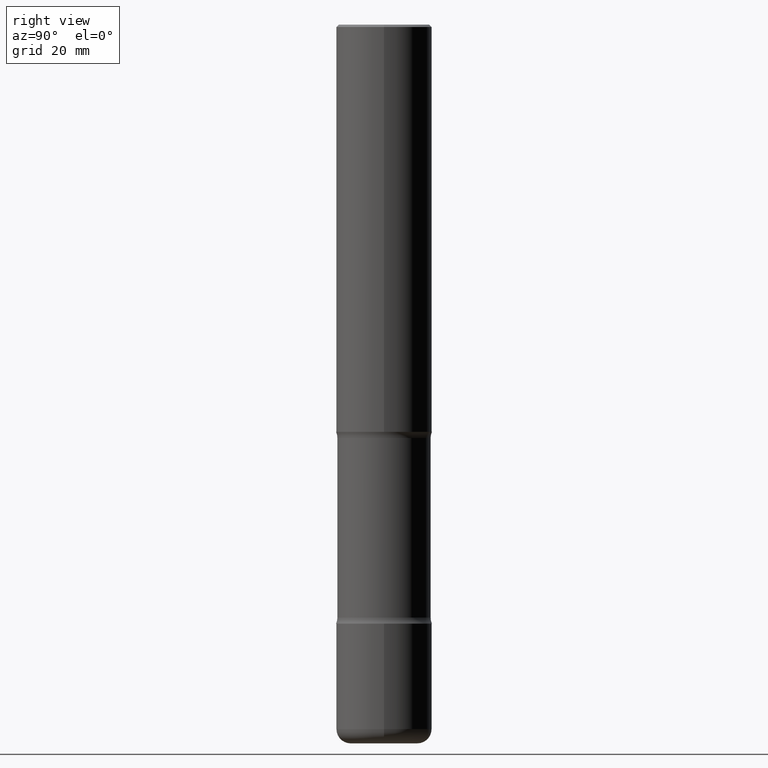
[diagram: clean part render]
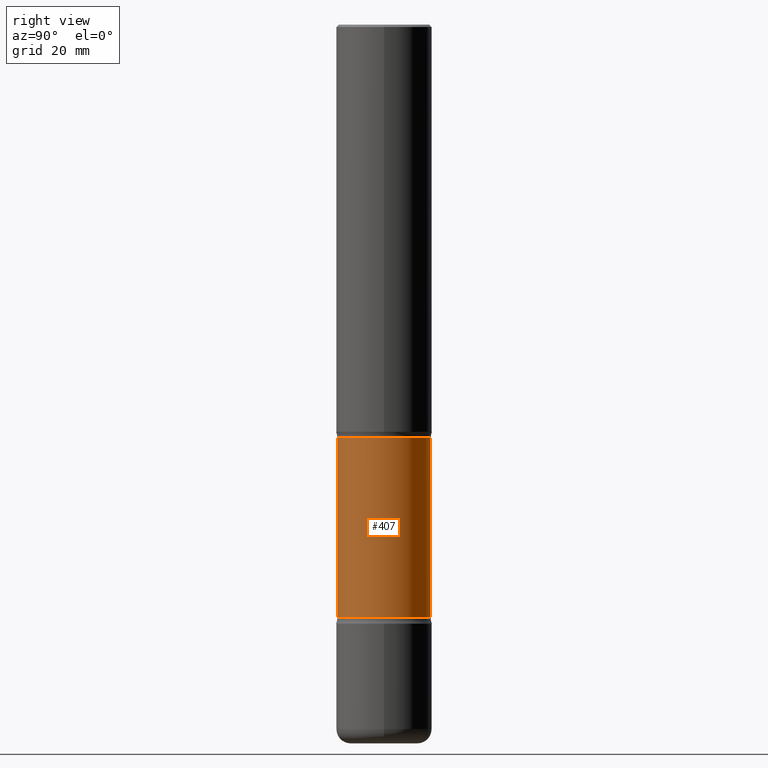
[diagram: same view with one face highlighted and labeled with its STEP entity id]
A machine part, right view. The second image highlights one B-rep face of the part: STEP entity #407.
In plain terms, the highlighted cylindrical surface (partial cylindrical patch) has radius 9.732 mm, axis along (0, -0, -1).
Its self-contained STEP definition (entity closure, byte-faithful):
#5 = EDGE_CURVE ( 'NONE', #536, #327, #84, .T. ) ;
#44 = CYLINDRICAL_SURFACE ( 'NONE', #326, 0.3831500000000001016 ) ;
#78 = CARTESIAN_POINT ( 'NONE',  ( -2.664788934784327650E-15, -0.3831500000000122585, -3.396661292263528864 ) ) ;
#84 = LINE ( 'NONE', #203, #85 ) ;
#85 = VECTOR ( 'NONE', #115, 39.37007874015748143 ) ;
#91 = CARTESIAN_POINT ( 'NONE',  ( 1.190673467460695127E-28, -1.701394328149833235E-14, -4.870938707736469198 ) ) ;
#93 = EDGE_CURVE ( 'NONE', #410, #395, #443, .T. ) ;
#99 = VECTOR ( 'NONE', #435, 39.37007874015748143 ) ;
#115 = DIRECTION ( 'NONE',  ( 2.544829403126025960E-29, -3.349191308769819201E-15, -1.000000000000000000 ) ) ;
#120 = CARTESIAN_POINT ( 'NONE',  ( 8.154950159346770172E-29, -1.207630617488073123E-14, -3.396661292263530196 ) ) ;
#161 = CARTESIAN_POINT ( 'NONE',  ( 1.453951667049523885E-28, -2.047888696993701883E-14, -5.905499999999999972 ) ) ;
#173 = DIRECTION ( 'NONE',  ( 6.982962677686266711E-15, 1.000000000000000000, -2.851987987643756086E-15 ) ) ;
#182 = EDGE_CURVE ( 'NONE', #395, #327, #437, .T. ) ;
#186 = ORIENTED_EDGE ( 'NONE', *, *, #93, .F. ) ;
#195 = AXIS2_PLACEMENT_3D ( 'NONE', #120, #292, #204 ) ;
#199 = ORIENTED_EDGE ( 'NONE', *, *, #530, .T. ) ;
#203 = CARTESIAN_POINT ( 'NONE',  ( -2.628599807846017064E-15, -0.3831500000000205852, -5.905499999999998195 ) ) ;
#204 = DIRECTION ( 'NONE',  ( 6.982962677686265922E-15, 1.000000000000000000, -2.851987987643754903E-15 ) ) ;
#292 = DIRECTION ( 'NONE',  ( 2.544829403126025960E-29, -3.349191308769819201E-15, -1.000000000000000000 ) ) ;
#303 = CARTESIAN_POINT ( 'NONE',  ( 2.675522149955575835E-15, 0.3831499999999881112, -3.396661292263531085 ) ) ;
#313 = ORIENTED_EDGE ( 'NONE', *, *, #5, .T. ) ;
#326 = AXIS2_PLACEMENT_3D ( 'NONE', #161, #418, #426 ) ;
#327 = VERTEX_POINT ( 'NONE', #469 ) ;
#340 = FACE_OUTER_BOUND ( 'NONE', #507, .T. ) ;
#349 = AXIS2_PLACEMENT_3D ( 'NONE', #91, #430, #173 ) ;
#354 = CARTESIAN_POINT ( 'NONE',  ( 2.675522149955639339E-15, 0.3831499999999796180, -5.905500000000000860 ) ) ;
#376 = CARTESIAN_POINT ( 'NONE',  ( 2.675522149955612123E-15, 0.3831499999999830597, -4.870938707736470974 ) ) ;
#381 = CIRCLE ( 'NONE', #195, 0.3831500000000002126 ) ;
#395 = VERTEX_POINT ( 'NONE', #376 ) ;
#407 = ADVANCED_FACE ( 'NONE', ( #340 ), #44, .T. ) ;
#410 = VERTEX_POINT ( 'NONE', #303 ) ;
#418 = DIRECTION ( 'NONE',  ( 2.544829403126025960E-29, -3.349191308769819201E-15, -1.000000000000000000 ) ) ;
#426 = DIRECTION ( 'NONE',  ( 6.982962677686266711E-15, 1.000000000000000000, -2.851987987643755691E-15 ) ) ;
#430 = DIRECTION ( 'NONE',  ( 2.544829403126025960E-29, -3.349191308769819201E-15, -1.000000000000000000 ) ) ;
#435 = DIRECTION ( 'NONE',  ( 2.544829403126025960E-29, -3.349191308769819201E-15, -1.000000000000000000 ) ) ;
#437 = CIRCLE ( 'NONE', #349, 0.3831500000000000461 ) ;
#443 = LINE ( 'NONE', #354, #99 ) ;
#454 = ORIENTED_EDGE ( 'NONE', *, *, #182, .F. ) ;
#469 = CARTESIAN_POINT ( 'NONE',  ( -2.664788934784287813E-15, -0.3831500000000170325, -4.870938707736468309 ) ) ;
#507 = EDGE_LOOP ( 'NONE', ( #199, #313, #454, #186 ) ) ;
#530 = EDGE_CURVE ( 'NONE', #410, #536, #381, .T. ) ;
#536 = VERTEX_POINT ( 'NONE', #78 ) ;